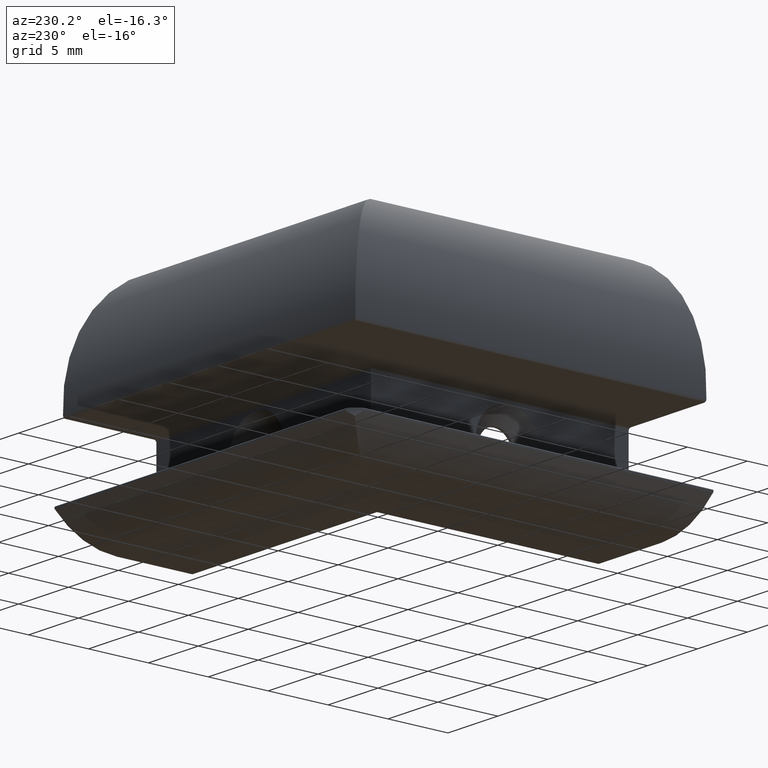
[diagram: clean part render]
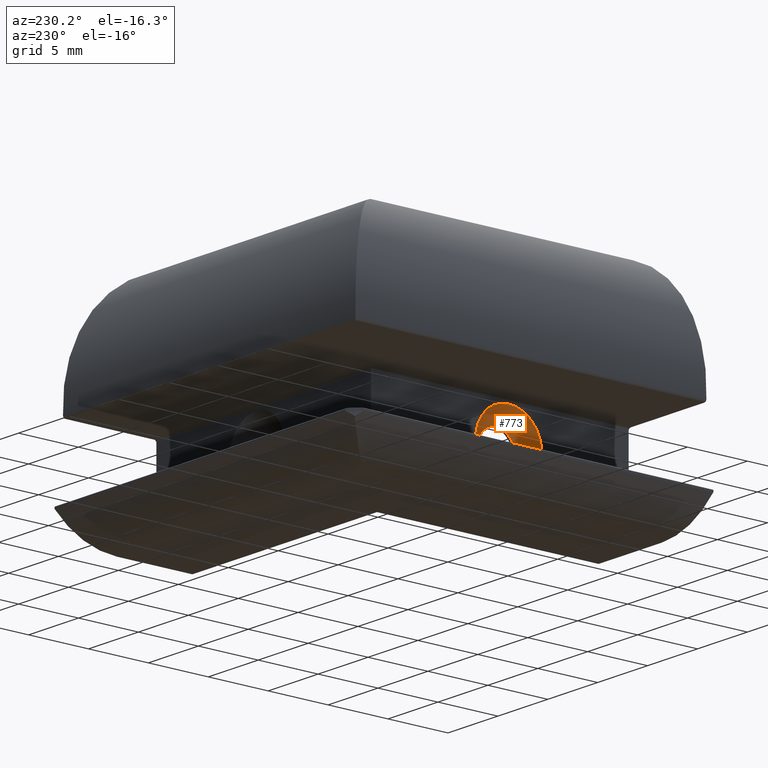
[diagram: same view with one face highlighted and labeled with its STEP entity id]
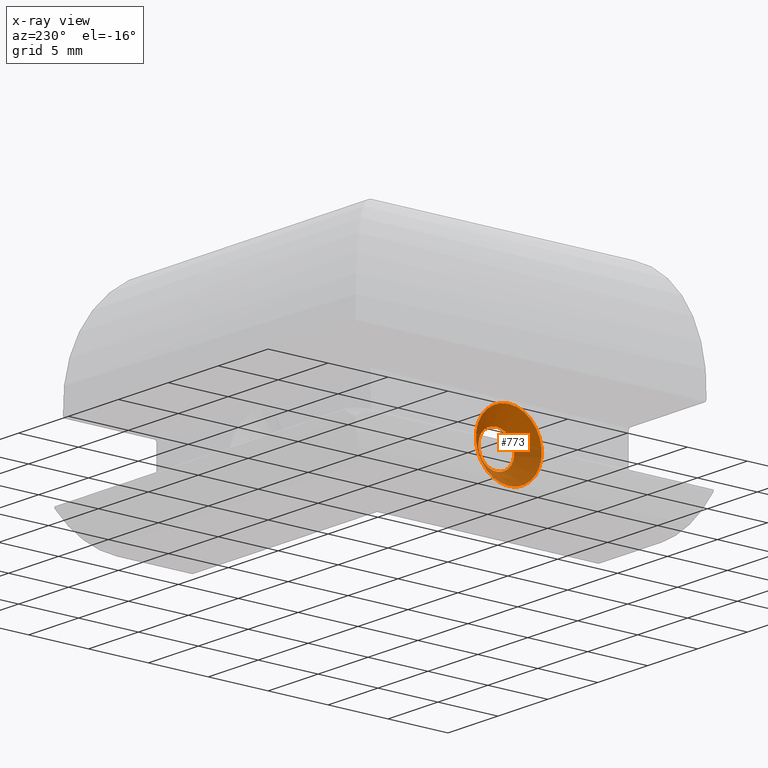
[diagram: x-ray of the same camera — body ghosted, the highlighted face saturated]
A machine part, auxiliary view. The second image highlights one B-rep face of the part: STEP entity #773.
The next image is the same camera in x-ray: the body ghosted, the highlighted face saturated — about 45% of this face is hidden behind the body in this view.
In plain terms, the highlighted conical surface has half-angle 45 deg.
Its self-contained STEP definition (entity closure, byte-faithful):
#74=FACE_OUTER_BOUND('',#118,.T.);
#118=EDGE_LOOP('',(#533,#534,#535,#536,#537,#538));
#166=LINE('',#1179,#235);
#235=VECTOR('',#933,2.125);
#304=CIRCLE('',#838,2.75);
#305=CIRCLE('',#839,2.75);
#306=CIRCLE('',#840,1.5);
#307=CIRCLE('',#841,1.5);
#341=VERTEX_POINT('',#1174);
#342=VERTEX_POINT('',#1175);
#343=VERTEX_POINT('',#1178);
#344=VERTEX_POINT('',#1180);
#414=EDGE_CURVE('',#341,#342,#304,.T.);
#415=EDGE_CURVE('',#342,#341,#305,.T.);
#416=EDGE_CURVE('',#342,#343,#166,.T.);
#417=EDGE_CURVE('',#344,#343,#306,.T.);
#418=EDGE_CURVE('',#343,#344,#307,.T.);
#533=ORIENTED_EDGE('',*,*,#414,.F.);
#534=ORIENTED_EDGE('',*,*,#415,.F.);
#535=ORIENTED_EDGE('',*,*,#416,.T.);
#536=ORIENTED_EDGE('',*,*,#417,.F.);
#537=ORIENTED_EDGE('',*,*,#418,.F.);
#538=ORIENTED_EDGE('',*,*,#416,.F.);
#771=CONICAL_SURFACE('',#837,2.125,0.785398163397448);
#773=ADVANCED_FACE('',(#74),#771,.F.);
#837=AXIS2_PLACEMENT_3D('',#1173,#927,#928);
#838=AXIS2_PLACEMENT_3D('',#1176,#929,#930);
#839=AXIS2_PLACEMENT_3D('',#1177,#931,#932);
#840=AXIS2_PLACEMENT_3D('',#1181,#934,#935);
#841=AXIS2_PLACEMENT_3D('',#1182,#936,#937);
#927=DIRECTION('center_axis',(-1.,0.,-1.98254111540196E-16));
#928=DIRECTION('ref_axis',(-1.98254111540196E-16,0.,1.));
#929=DIRECTION('center_axis',(1.,0.,1.98254111540196E-16));
#930=DIRECTION('ref_axis',(-1.98254111540196E-16,0.,1.));
#931=DIRECTION('center_axis',(1.,0.,1.98254111540196E-16));
#932=DIRECTION('ref_axis',(-1.98254111540196E-16,0.,1.));
#933=DIRECTION('',(0.707106781186547,8.65956056235493E-17,0.707106781186548));
#934=DIRECTION('center_axis',(-1.,0.,-1.98254111540196E-16));
#935=DIRECTION('ref_axis',(-1.98254111540196E-16,0.,1.));
#936=DIRECTION('center_axis',(-1.,0.,-1.98254111540196E-16));
#937=DIRECTION('ref_axis',(-1.98254111540196E-16,0.,1.));
#1173=CARTESIAN_POINT('Origin',(3.62500000004446,0.75,-4.60000000000001));
#1174=CARTESIAN_POINT('',(3.00000000004446,0.75,-1.85000000000001));
#1175=CARTESIAN_POINT('',(3.00000000004446,0.749999999999999,-7.35000000000001));
#1176=CARTESIAN_POINT('Origin',(3.00000000004446,0.75,-4.60000000000001));
#1177=CARTESIAN_POINT('Origin',(3.00000000004446,0.75,-4.60000000000001));
#1178=CARTESIAN_POINT('',(4.25000000004446,0.749999999999999,-6.10000000000001));
#1179=CARTESIAN_POINT('',(3.62500000004446,0.749999999999999,-6.72500000000001));
#1180=CARTESIAN_POINT('',(4.25000000004446,0.75,-3.10000000000001));
#1181=CARTESIAN_POINT('Origin',(4.25000000004446,0.75,-4.60000000000001));
#1182=CARTESIAN_POINT('Origin',(4.25000000004446,0.75,-4.60000000000001));